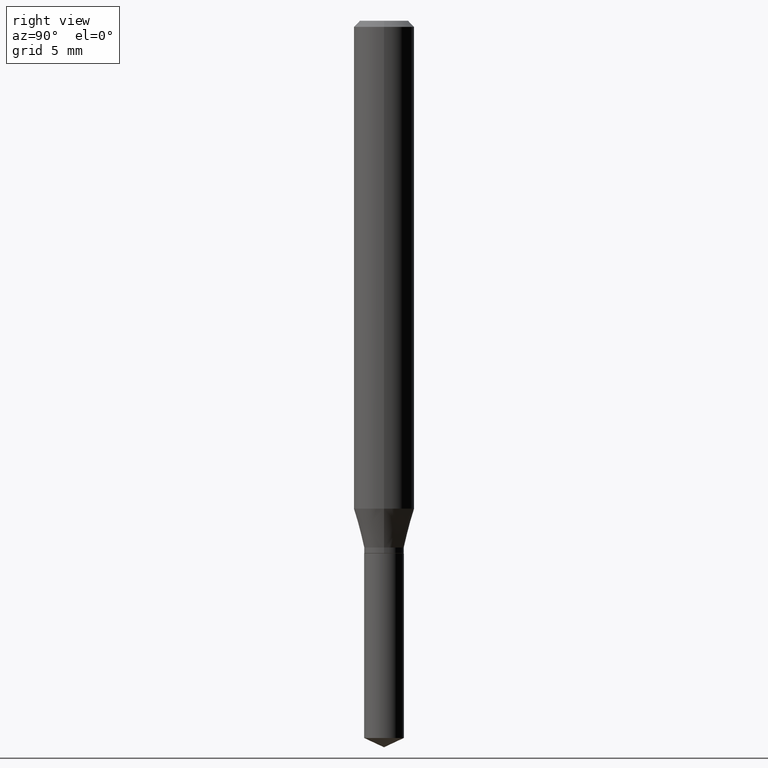
[diagram: clean part render]
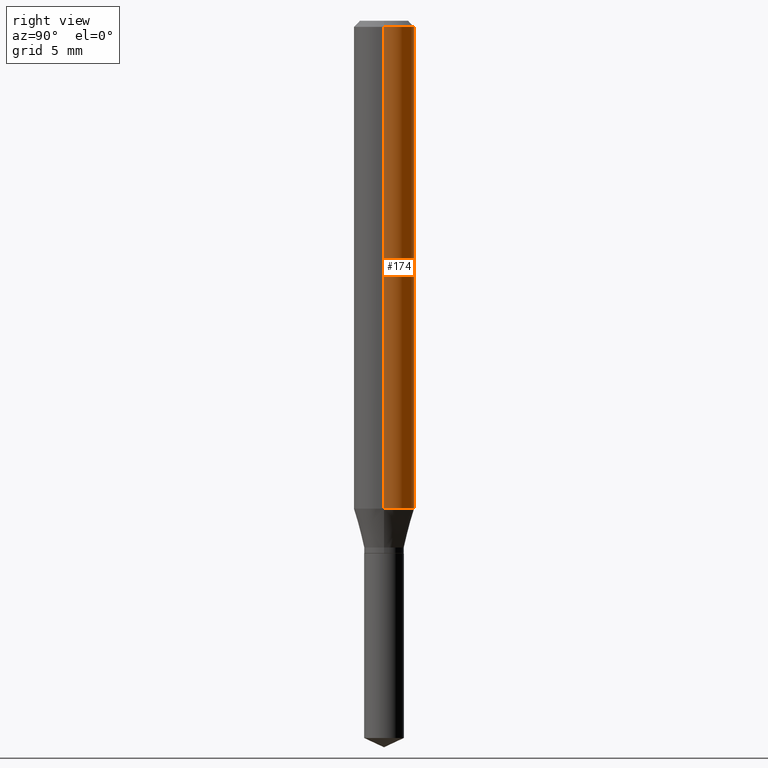
[diagram: same view with one face highlighted and labeled with its STEP entity id]
A machine part, right view. The second image highlights one B-rep face of the part: STEP entity #174.
In plain terms, the highlighted cylindrical surface (edge-blend (fillet) strip) has radius 1.5875 mm, axis along (-0, 0, 1).
Its self-contained STEP definition (entity closure, byte-faithful):
#7 = LINE ( 'NONE', #282, #467 ) ;
#13 = EDGE_LOOP ( 'NONE', ( #434, #386, #171, #367 ) ) ;
#18 = DIRECTION ( 'NONE',  ( -2.445468806185136597E-29, 3.491481338843145583E-15, 1.000000000000000000 ) ) ;
#56 = CYLINDRICAL_SURFACE ( 'NONE', #262, 0.06250000000000005551 ) ;
#57 = CARTESIAN_POINT ( 'NONE',  ( -0.06250000000000000000, -1.336498027832457228E-15, -0.01250000000000008049 ) ) ;
#81 = CARTESIAN_POINT ( 'NONE',  ( 0.000000000000000000, 0.000000000000000000, 0.000000000000000000 ) ) ;
#102 = AXIS2_PLACEMENT_3D ( 'NONE', #354, #18, #357 ) ;
#121 = DIRECTION ( 'NONE',  ( -2.445468806185136597E-29, 3.491481338843145583E-15, 1.000000000000000000 ) ) ;
#127 = EDGE_CURVE ( 'NONE', #254, #471, #248, .T. ) ;
#136 = CARTESIAN_POINT ( 'NONE',  ( 0.06250000000000012490, -3.953966125984894953E-15, -1.007460907637268921 ) ) ;
#145 = AXIS2_PLACEMENT_3D ( 'NONE', #307, #121, #339 ) ;
#155 = DIRECTION ( 'NONE',  ( -2.445468806185136877E-29, 3.491481338843145188E-15, 1.000000000000000000 ) ) ;
#166 = CIRCLE ( 'NONE', #145, 0.06250000000000012490 ) ;
#169 = DIRECTION ( 'NONE',  ( 1.000000000000000000, -6.982962677686267499E-15, 4.876176775795936353E-29 ) ) ;
#171 = ORIENTED_EDGE ( 'NONE', *, *, #127, .F. ) ;
#174 = ADVANCED_FACE ( 'NONE', ( #393 ), #56, .T. ) ;
#206 = CARTESIAN_POINT ( 'NONE',  ( 0.06250000000000000000, -4.800786840909312308E-16, -0.01250000000000008049 ) ) ;
#226 = VECTOR ( 'NONE', #249, 39.37007874015748143 ) ;
#235 = EDGE_CURVE ( 'NONE', #420, #490, #166, .T. ) ;
#242 = DIRECTION ( 'NONE',  ( -2.445468806185136597E-29, 3.491481338843145583E-15, 1.000000000000000000 ) ) ;
#248 = CIRCLE ( 'NONE', #102, 0.06250000000000000000 ) ;
#249 = DIRECTION ( 'NONE',  ( -2.445468806185136877E-29, 3.491481338843145188E-15, 1.000000000000000000 ) ) ;
#254 = VERTEX_POINT ( 'NONE', #206 ) ;
#261 = EDGE_CURVE ( 'NONE', #420, #254, #7, .T. ) ;
#262 = AXIS2_PLACEMENT_3D ( 'NONE', #81, #242, #169 ) ;
#282 = CARTESIAN_POINT ( 'NONE',  ( 0.06250000000000005551, -4.364351673553921131E-16, 3.047610484872463023E-30 ) ) ;
#307 = CARTESIAN_POINT ( 'NONE',  ( 2.463714223077906368E-29, -3.517530958629502494E-15, -1.007460907637268921 ) ) ;
#339 = DIRECTION ( 'NONE',  ( 1.000000000000000000, -6.982962677686264344E-15, 0.000000000000000000 ) ) ;
#354 = CARTESIAN_POINT ( 'NONE',  ( 3.056836007731440539E-31, -4.364351673553960451E-17, -0.01250000000000008049 ) ) ;
#357 = DIRECTION ( 'NONE',  ( 1.000000000000000000, -6.982962677686266711E-15, 0.000000000000000000 ) ) ;
#360 = LINE ( 'NONE', #443, #226 ) ;
#367 = ORIENTED_EDGE ( 'NONE', *, *, #261, .F. ) ;
#386 = ORIENTED_EDGE ( 'NONE', *, *, #398, .T. ) ;
#393 = FACE_OUTER_BOUND ( 'NONE', #13, .T. ) ;
#398 = EDGE_CURVE ( 'NONE', #490, #471, #360, .T. ) ;
#420 = VERTEX_POINT ( 'NONE', #136 ) ;
#434 = ORIENTED_EDGE ( 'NONE', *, *, #235, .T. ) ;
#443 = CARTESIAN_POINT ( 'NONE',  ( -0.06250000000000005551, 4.440892098500630106E-16, -3.074334431409318916E-30 ) ) ;
#467 = VECTOR ( 'NONE', #155, 39.37007874015748143 ) ;
#471 = VERTEX_POINT ( 'NONE', #57 ) ;
#474 = CARTESIAN_POINT ( 'NONE',  ( -0.06250000000000012490, -3.073441748779439089E-15, -1.007460907637268921 ) ) ;
#490 = VERTEX_POINT ( 'NONE', #474 ) ;